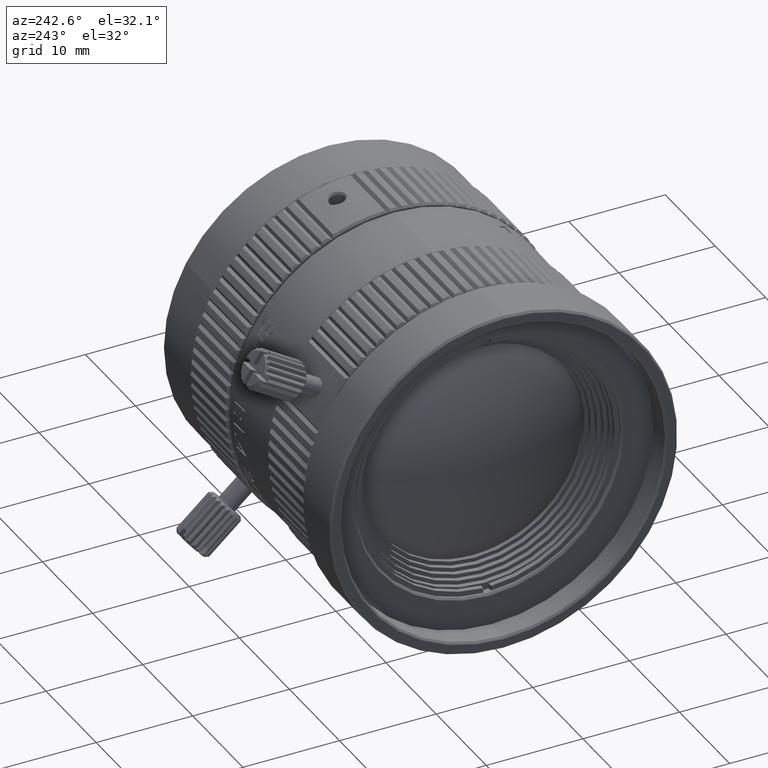
[diagram: clean part render]
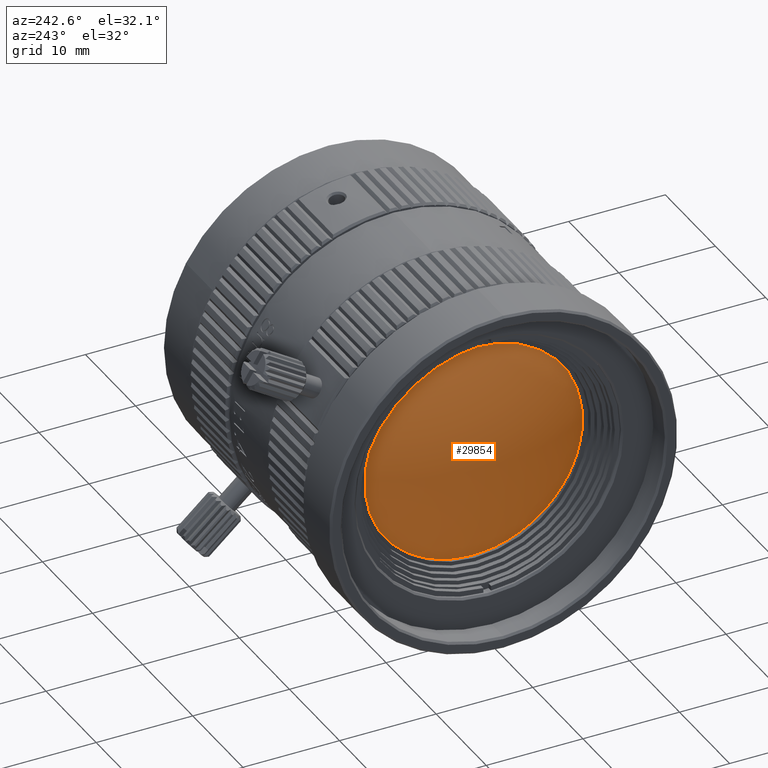
[diagram: same view with one face highlighted and labeled with its STEP entity id]
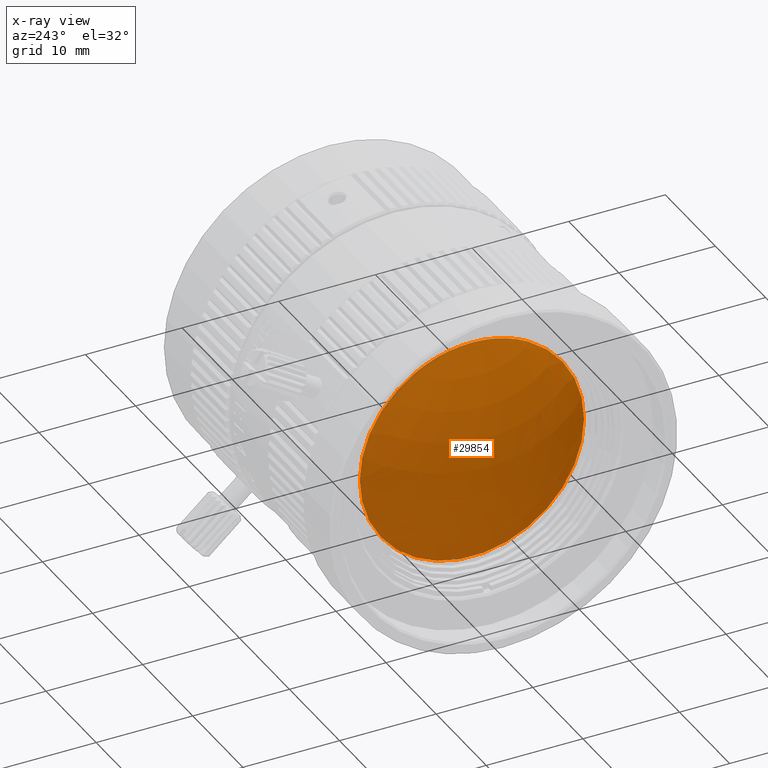
[diagram: x-ray of the same camera — body ghosted, the highlighted face saturated]
A machine part, auxiliary view. The second image highlights one B-rep face of the part: STEP entity #29854.
The next image is the same camera in x-ray: the body ghosted, the highlighted face saturated — about 1% of this face is hidden behind the body in this view.
In plain terms, the highlighted spherical surface has radius 21.392 mm.
Its self-contained STEP definition (entity closure, byte-faithful):
#620 = DIRECTION ( 'NONE',  ( -1.000000000000000000, -3.644377050371443470E-17, -1.822188525185722043E-17 ) ) ;
#1387 = CARTESIAN_POINT ( 'NONE',  ( -7.836703124340919757, -1.064517886826022154E-17, -5.322589434130112311E-18 ) ) ;
#4876 = ORIENTED_EDGE ( 'NONE', *, *, #47191, .T. ) ;
#6159 = CARTESIAN_POINT ( 'NONE',  ( -7.836703124340919757, -11.60790127582503928, 1.428665202600496222E-15 ) ) ;
#7295 = DIRECTION ( 'NONE',  ( 0.000000000000000000, 1.000000000000000000, 0.000000000000000000 ) ) ;
#10515 = AXIS2_PLACEMENT_3D ( 'NONE', #35776, #61165, #24021 ) ;
#13925 = DIRECTION ( 'NONE',  ( -1.000000000000000000, -3.644377050371443470E-17, -1.822188525185722043E-17 ) ) ;
#14014 = VERTEX_POINT ( 'NONE', #6159 ) ;
#16256 = AXIS2_PLACEMENT_3D ( 'NONE', #41769, #620, #30030 ) ;
#18848 = AXIS2_PLACEMENT_3D ( 'NONE', #1387, #13925, #7295 ) ;
#20077 = CIRCLE ( 'NONE', #16256, 11.60790127582503928 ) ;
#23137 = CARTESIAN_POINT ( 'NONE',  ( -7.836703124340919757, 11.60790127582503928, -5.322589434130112311E-18 ) ) ;
#24021 = DIRECTION ( 'NONE',  ( -0.8353401809811812351, 0.000000000000000000, -0.5497333735897134144 ) ) ;
#25115 = CIRCLE ( 'NONE', #18848, 11.60790127582503928 ) ;
#29854 = ADVANCED_FACE ( 'NONE', ( #73317 ), #43885, .T. ) ;
#30030 = DIRECTION ( 'NONE',  ( 0.000000000000000000, 1.000000000000000000, 0.000000000000000000 ) ) ;
#32010 = ORIENTED_EDGE ( 'NONE', *, *, #45946, .T. ) ;
#35126 = EDGE_LOOP ( 'NONE', ( #4876, #32010 ) ) ;
#35776 = CARTESIAN_POINT ( 'NONE',  ( 10.13200000000000145, 8.673617379884035472E-16, 0.000000000000000000 ) ) ;
#41769 = CARTESIAN_POINT ( 'NONE',  ( -7.836703124340919757, -1.064517886826022154E-17, -5.322589434130112311E-18 ) ) ;
#43885 = SPHERICAL_SURFACE ( 'NONE', #10515, 21.39199999999999946 ) ;
#45946 = EDGE_CURVE ( 'NONE', #14014, #67435, #25115, .T. ) ;
#47191 = EDGE_CURVE ( 'NONE', #67435, #14014, #20077, .T. ) ;
#61165 = DIRECTION ( 'NONE',  ( -0.5497333735897134144, 0.000000000000000000, 0.8353401809811812351 ) ) ;
#67435 = VERTEX_POINT ( 'NONE', #23137 ) ;
#73317 = FACE_OUTER_BOUND ( 'NONE', #35126, .T. ) ;